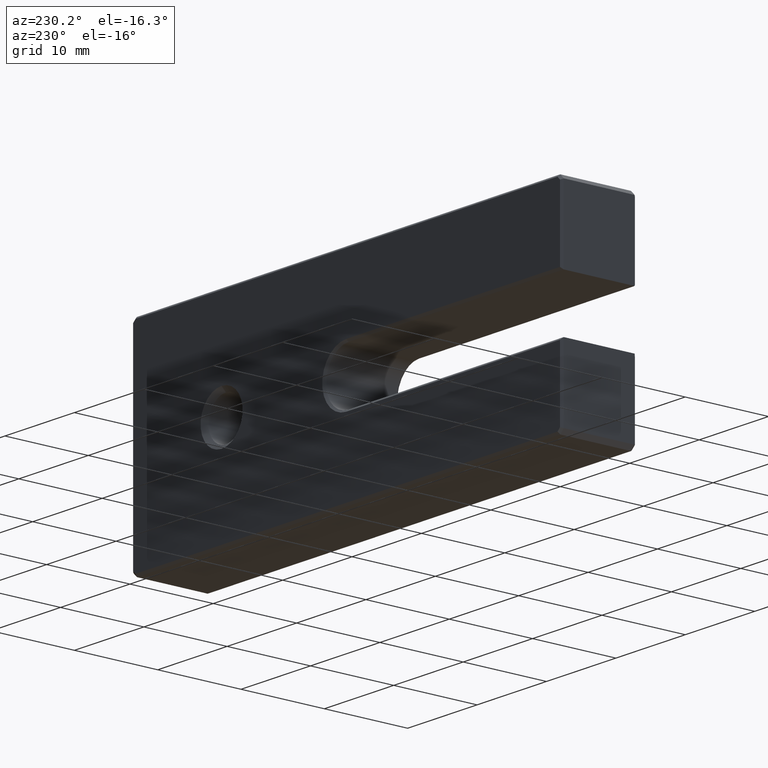
[diagram: clean part render]
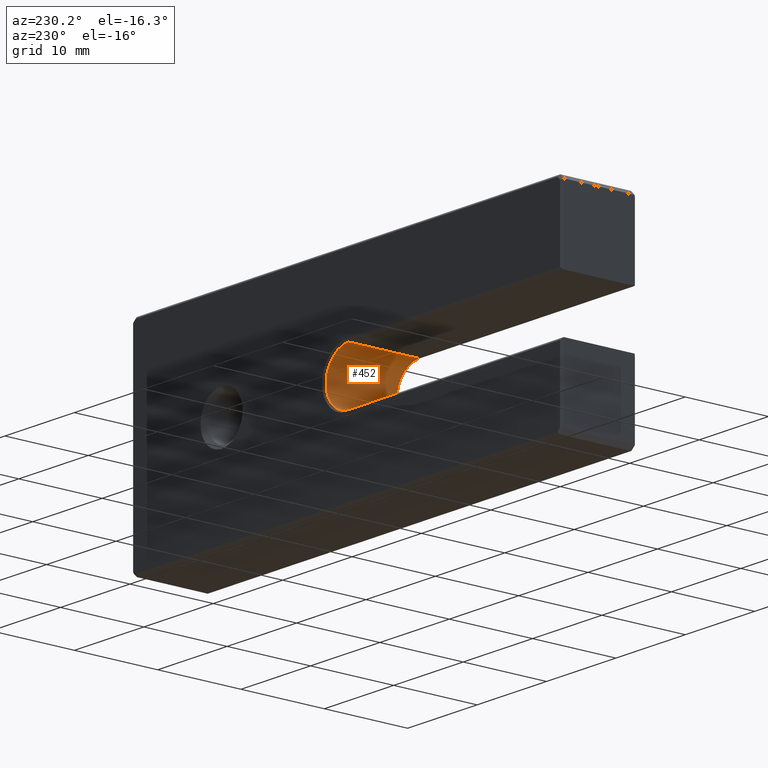
[diagram: same view with one face highlighted and labeled with its STEP entity id]
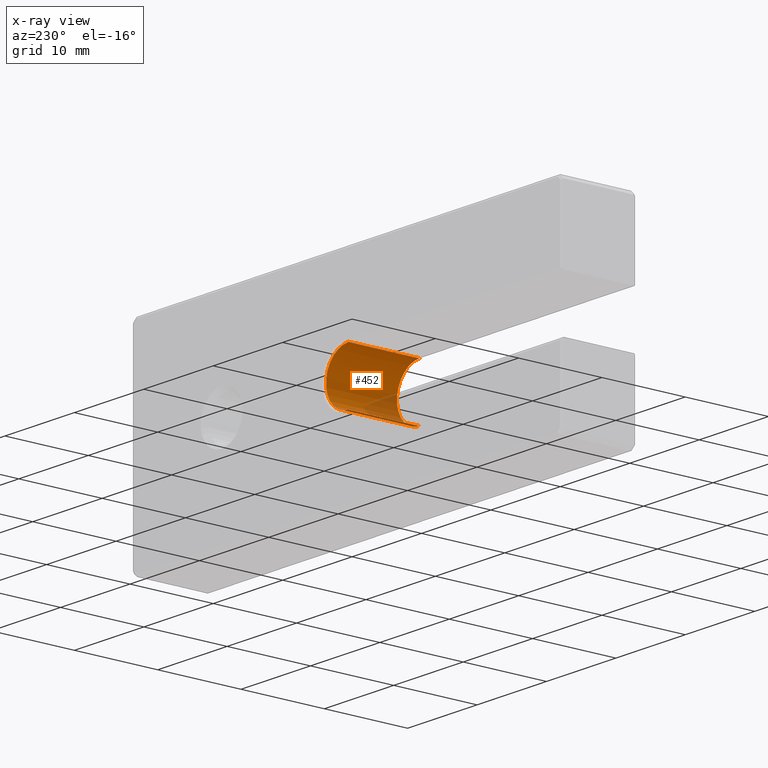
[diagram: x-ray of the same camera — body ghosted, the highlighted face saturated]
A machine part, auxiliary view. The second image highlights one B-rep face of the part: STEP entity #452.
The next image is the same camera in x-ray: the body ghosted, the highlighted face saturated — about 14% of this face is hidden behind the body in this view.
In plain terms, the highlighted cylindrical surface (edge-blend (fillet) strip) has radius 3.25 mm, axis along (-0, 1, -0).
Its self-contained STEP definition (entity closure, byte-faithful):
#22 = CARTESIAN_POINT ( 'NONE',  ( 0.000000000000000000, -12.00000000000000533, -3.250000000000000000 ) ) ;
#63 = EDGE_CURVE ( 'NONE', #641, #1106, #391, .T. ) ;
#158 = AXIS2_PLACEMENT_3D ( 'NONE', #612, #208, #187 ) ;
#187 = DIRECTION ( 'NONE',  ( 0.000000000000000000, 0.000000000000000000, 1.000000000000000000 ) ) ;
#194 = VERTEX_POINT ( 'NONE', #525 ) ;
#208 = DIRECTION ( 'NONE',  ( 0.000000000000000000, 1.000000000000000000, 0.000000000000000000 ) ) ;
#234 = EDGE_CURVE ( 'NONE', #194, #409, #682, .T. ) ;
#267 = EDGE_CURVE ( 'NONE', #641, #409, #892, .T. ) ;
#367 = EDGE_LOOP ( 'NONE', ( #556, #484, #522, #729 ) ) ;
#371 = DIRECTION ( 'NONE',  ( -0.000000000000000000, 1.000000000000000000, -0.000000000000000000 ) ) ;
#391 = CIRCLE ( 'NONE', #885, 3.250000000000000000 ) ;
#409 = VERTEX_POINT ( 'NONE', #1110 ) ;
#452 = ADVANCED_FACE ( 'NONE', ( #689 ), #769, .F. ) ;
#484 = ORIENTED_EDGE ( 'NONE', *, *, #63, .T. ) ;
#513 = DIRECTION ( 'NONE',  ( -0.000000000000000000, 1.000000000000000000, -0.000000000000000000 ) ) ;
#518 = VECTOR ( 'NONE', #606, 1000.000000000000000 ) ;
#522 = ORIENTED_EDGE ( 'NONE', *, *, #600, .T. ) ;
#524 = CARTESIAN_POINT ( 'NONE',  ( 0.000000000000000000, -12.00000000000000533, 3.250000000000000000 ) ) ;
#525 = CARTESIAN_POINT ( 'NONE',  ( 0.000000000000000000, 8.749999999999998224, 3.250000000000000000 ) ) ;
#539 = LINE ( 'NONE', #524, #518 ) ;
#556 = ORIENTED_EDGE ( 'NONE', *, *, #267, .F. ) ;
#600 = EDGE_CURVE ( 'NONE', #1106, #194, #539, .T. ) ;
#606 = DIRECTION ( 'NONE',  ( -0.000000000000000000, 1.000000000000000000, -0.000000000000000000 ) ) ;
#612 = CARTESIAN_POINT ( 'NONE',  ( 0.000000000000000000, 8.749999999999998224, 0.000000000000000000 ) ) ;
#641 = VERTEX_POINT ( 'NONE', #967 ) ;
#682 = CIRCLE ( 'NONE', #158, 3.250000000000000000 ) ;
#689 = FACE_OUTER_BOUND ( 'NONE', #367, .T. ) ;
#729 = ORIENTED_EDGE ( 'NONE', *, *, #234, .T. ) ;
#769 = CYLINDRICAL_SURFACE ( 'NONE', #810, 3.250000000000000000 ) ;
#782 = CARTESIAN_POINT ( 'NONE',  ( 0.000000000000000000, 0.2499999999999932832, 0.000000000000000000 ) ) ;
#810 = AXIS2_PLACEMENT_3D ( 'NONE', #1019, #513, #857 ) ;
#857 = DIRECTION ( 'NONE',  ( 0.000000000000000000, 0.000000000000000000, 1.000000000000000000 ) ) ;
#858 = DIRECTION ( 'NONE',  ( -0.000000000000000000, -1.000000000000000000, -0.000000000000000000 ) ) ;
#885 = AXIS2_PLACEMENT_3D ( 'NONE', #782, #858, #922 ) ;
#892 = LINE ( 'NONE', #22, #903 ) ;
#903 = VECTOR ( 'NONE', #371, 1000.000000000000000 ) ;
#922 = DIRECTION ( 'NONE',  ( 0.000000000000000000, 0.000000000000000000, 1.000000000000000000 ) ) ;
#967 = CARTESIAN_POINT ( 'NONE',  ( 0.000000000000000000, 0.2499999999999932832, -3.250000000000000000 ) ) ;
#1019 = CARTESIAN_POINT ( 'NONE',  ( 0.000000000000000000, -12.00000000000000533, 0.000000000000000000 ) ) ;
#1082 = CARTESIAN_POINT ( 'NONE',  ( 0.000000000000000000, 0.2499999999999932832, 3.250000000000000000 ) ) ;
#1106 = VERTEX_POINT ( 'NONE', #1082 ) ;
#1110 = CARTESIAN_POINT ( 'NONE',  ( 0.000000000000000000, 8.749999999999998224, -3.250000000000000000 ) ) ;